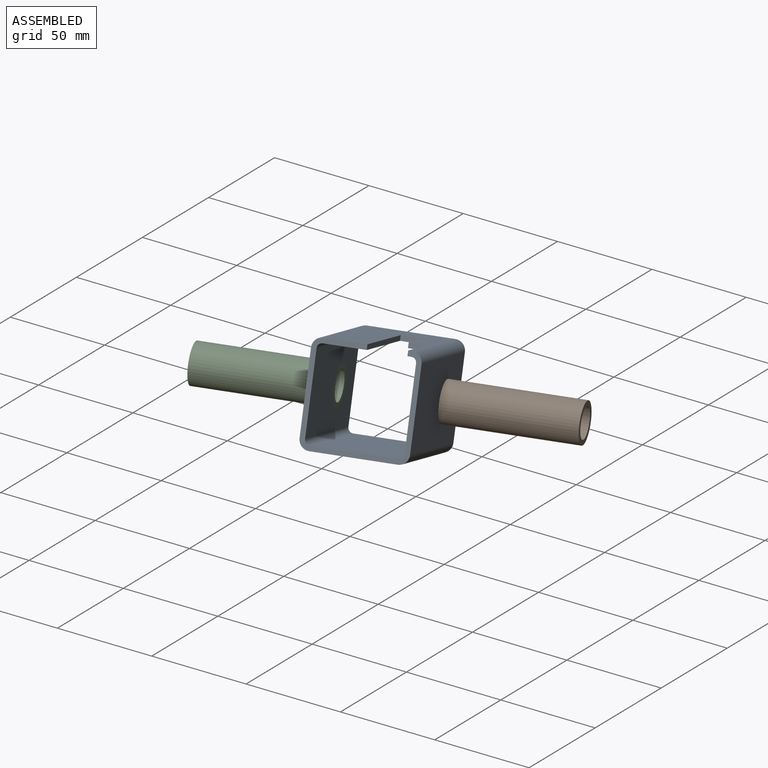
[diagram: assembled view]
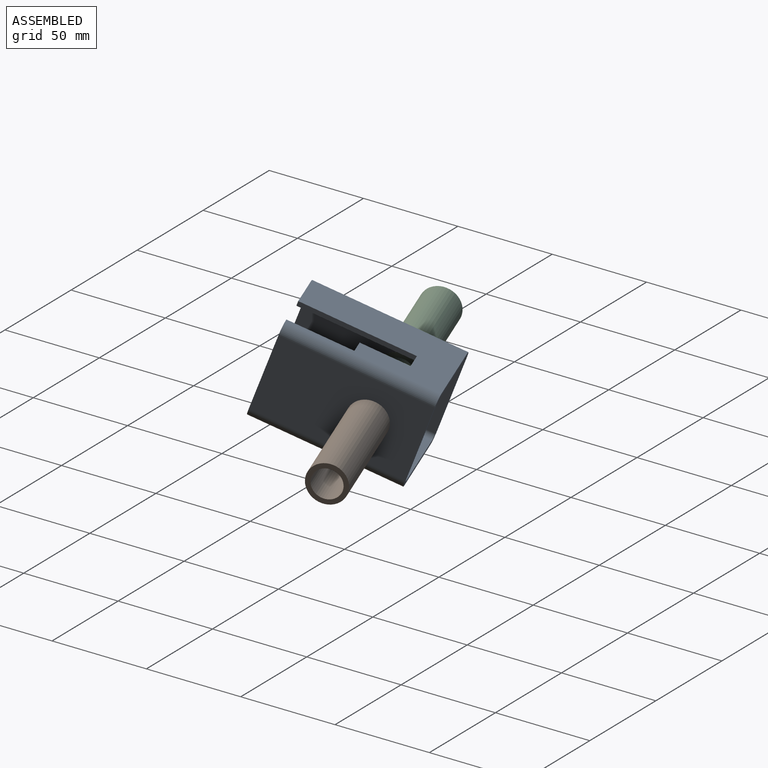
[diagram: assembled view, second angle]
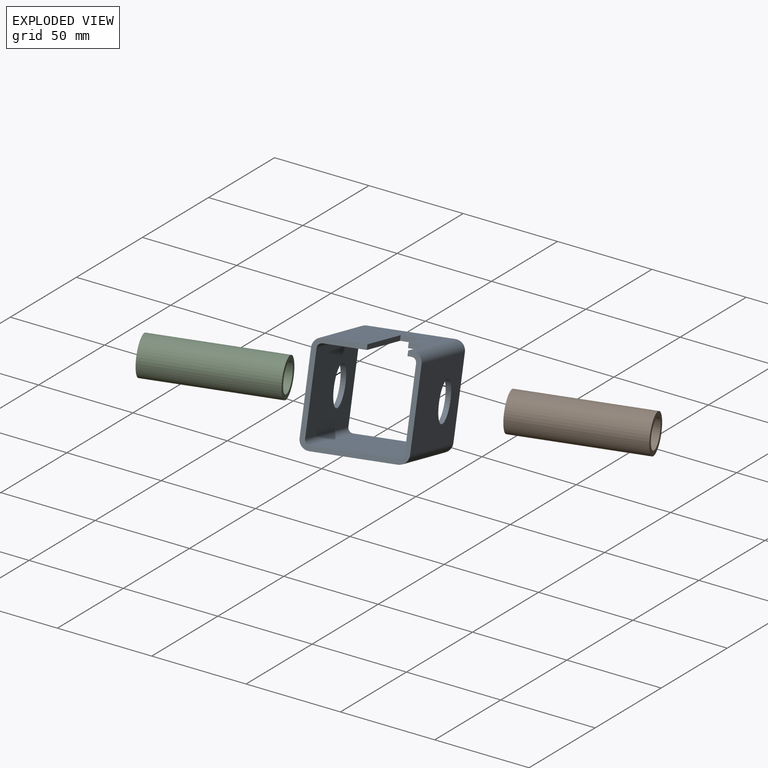
[diagram: exploded view]
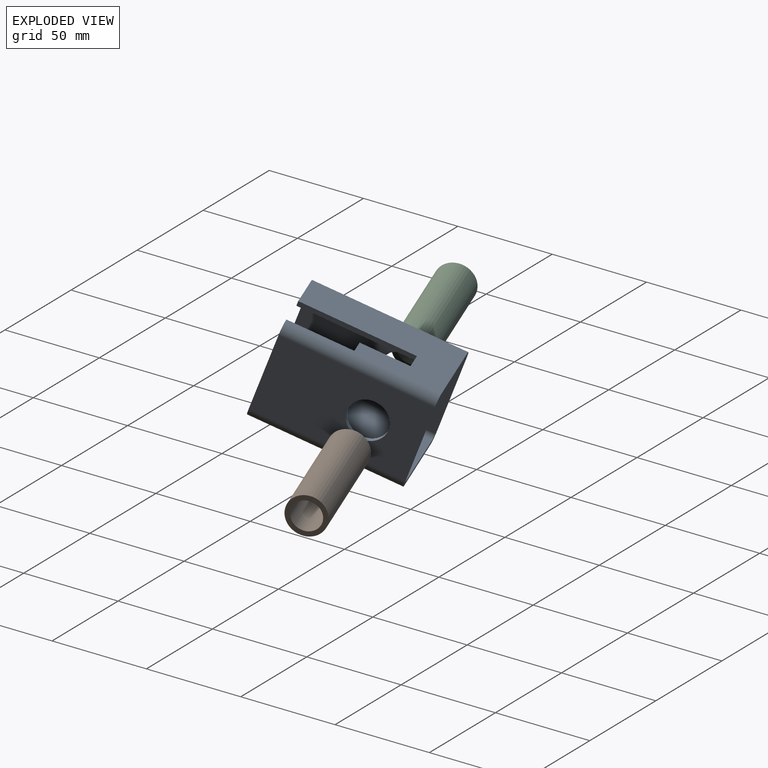
[diagram: exploded view, second angle]
ASSEMBLY  parts=3 mates=2
PART A: 25 faces, bbox 50x75x50 mm
  f0: plane 75x40mm, normal (1,0,0), area 2157mm2, adj f2,f3,f7,f10,f20,f21,f22,f23
  f1: plane 75x40mm, normal (-1,0,0), area 2157mm2, adj f2,f3,f14,f17,f20,f21,f22,f23
  f2: plane 50x50mm, normal (0,-1,0), area 458.9mm2, adj f0,f1,f4,f5,f6,f7,f8,f9
  f3: plane 50x50mm, normal (0,1,0), area 412.9mm2, adj f0,f1,f4,f5,f6,f7,f8,f9
  f4: plane 75x40mm, normal (0,0,1), area 2685.8mm2, adj f2,f3,f7,f8,f19
  f5: plane 75x40mm, normal (-1,0,0), area 3000mm2, adj f2,f3,f8,f9
  f6: plane 75x40mm, normal (0,0,-1), area 2685.8mm2, adj f2,f3,f9,f10,f18
  f7: cylinder r=5mm len=75mm, axis (0,-1,0), area 589mm2, adj f0,f2,f3,f4
  f8: cylinder r=5mm len=75mm, axis (0,1,0), area 589mm2, adj f2,f3,f4,f5
  f9: cylinder r=5mm len=75mm, axis (0,-1,0), area 589mm2, adj f2,f3,f5,f6
  f10: cylinder r=5mm len=75mm, axis (0,1,0), area 589mm2, adj f0,f2,f3,f6
  f11: plane 75x40mm, normal (0,0,-1), area 2685.8mm2, adj f2,f3,f14,f15,f19
  f12: plane 75x40mm, normal (1,0,0), area 3000mm2, adj f2,f3,f15,f16
  f13: plane 75x40mm, normal (0,0,1), area 2685.8mm2, adj f2,f3,f16,f17,f18
  f14: cylinder r=2.5mm len=75mm, axis (0,-1,0), area 294.5mm2, adj f1,f2,f3,f11
  f15: cylinder r=2.5mm len=75mm, axis (0,1,0), area 294.5mm2, adj f2,f3,f11,f12
  f16: cylinder r=2.5mm len=75mm, axis (0,-1,0), area 294.5mm2, adj f2,f3,f12,f13
  f17: cylinder r=2.5mm len=75mm, axis (0,1,0), area 294.5mm2, adj f1,f2,f3,f13
  f18: cylinder r=10mm len=20mm, axis (0,0,1), area 157.1mm2, adj f6,f13
  f19: cylinder r=10mm len=20mm, axis (0,0,1), area 157.1mm2, adj f4,f11
  f20: plane 57x2.5mm, normal (0,0,1), area 142.5mm2, adj f0,f1,f3,f24
  f21: plane 32.57x2.5mm, normal (0,0,-1), area 81.4mm2, adj f0,f1,f3,f22
  f22: plane 8.28x2.5mm, normal (0,1,0), area 20.7mm2, adj f0,f1,f21,f23
  f23: plane 24.43x2.5mm, normal (0,0,-1), area 61.1mm2, adj f0,f1,f22,f24
  f24: plane 10x2.5mm, normal (0,1,0), area 25mm2, adj f0,f1,f20,f23
PART B: 4 faces, bbox 20x66x20 mm
  f0: cylinder r=10mm len=66mm, axis (0,1,0), area 4146.9mm2, adj f1,f2
  f1: plane 20x20mm, normal (0,-1,0), area 137.4mm2, adj f0,f3
  f2: plane 20x20mm, normal (0,1,0), area 137.4mm2, adj f0,f3
  f3: cylinder r=7.5mm len=66mm, axis (0,1,0), area 3110.2mm2, adj f1,f2
PART C: same geometry as B
PLACE A rot(axis=(0.68,0.24,0.7),179.1deg) t=(39.44,73.18,5.97)mm
PLACE B rot(axis=(-0.55,-0.75,-0.37),123.5deg) t=(107.49,145.99,-14.09)mm
PLACE C rot(axis=(0.54,-0.37,0.76),122deg) t=(-59.95,88.87,-8.44)mm
MATE fastened A.f18 <-> B.f0  axis (-0.95,-0.32,0.03) through (45.05,124.69,-11.98)mm
MATE fastened C.f0 <-> A.f18  axis (0.95,0.32,-0.03) through (2.49,110.17,-10.54)mm
